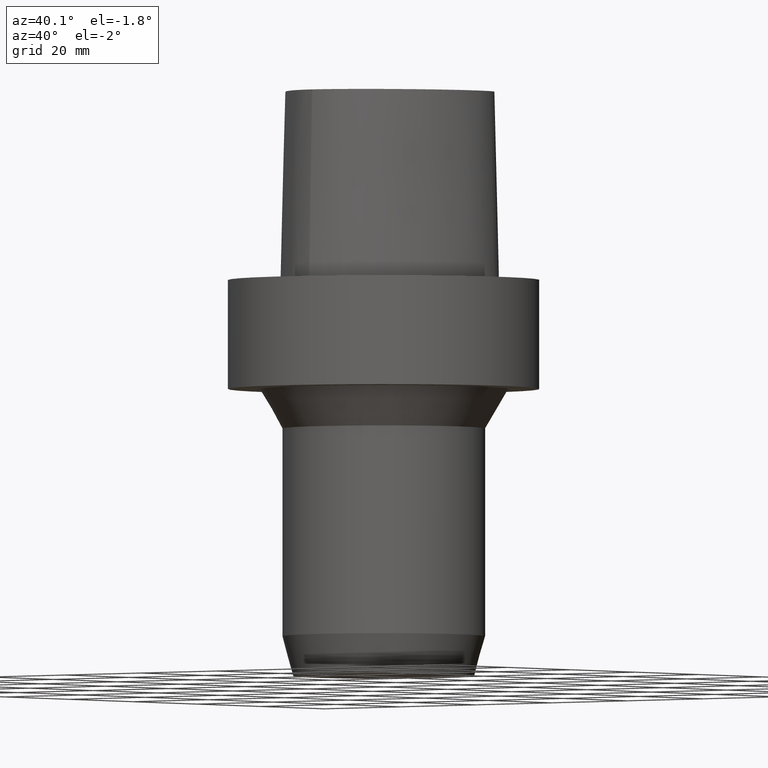
[diagram: clean part render]
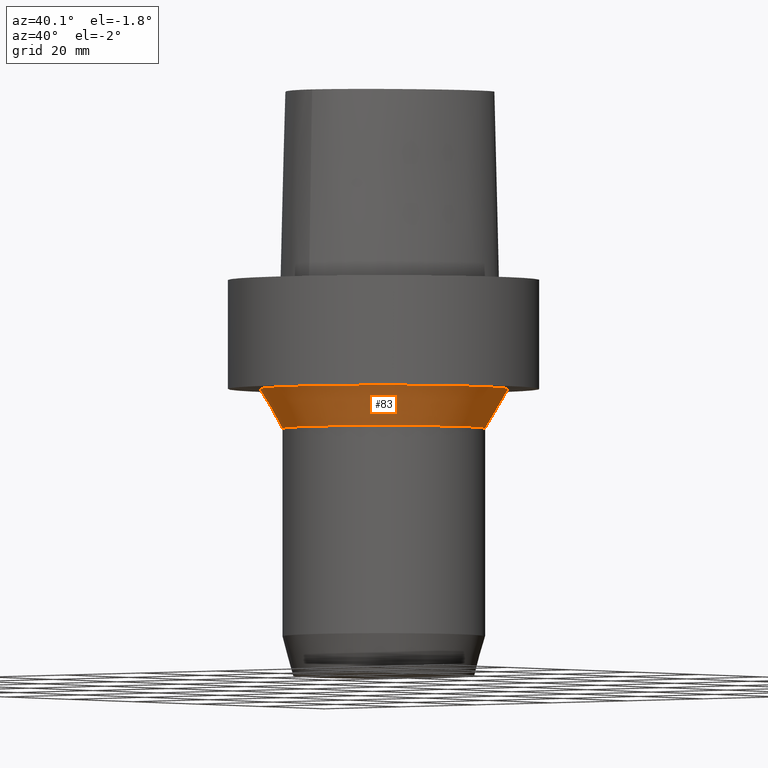
[diagram: same view with one face highlighted and labeled with its STEP entity id]
A machine part, auxiliary view. The second image highlights one B-rep face of the part: STEP entity #83.
In plain terms, the highlighted conical surface has half-angle 30 deg.
Its self-contained STEP definition (entity closure, byte-faithful):
#83=ADVANCED_FACE('',(#106,#107),#108,.T.);
#106=FACE_BOUND('',#272,.T.);
#107=FACE_BOUND('',#273,.T.);
#108=CONICAL_SURFACE('',#274,22.80940108,0.523598775994365);
#272=EDGE_LOOP('',(#321));
#273=EDGE_LOOP('',(#322));
#274=AXIS2_PLACEMENT_3D('',#323,#324,#325);
#321=ORIENTED_EDGE('',*,*,#348,.F.);
#322=ORIENTED_EDGE('',*,*,#347,.T.);
#323=CARTESIAN_POINT('',(1.59204083901131E-015,3.18408167802263E-015,-26.0000000019557));
#324=DIRECTION('',(-6.12323399573677E-017,-1.22464679914735E-016,1.0));
#325=DIRECTION('',(-1.23259516440783E-032,1.0,1.22464679914735E-016));
#347=EDGE_CURVE('',#369,#369,#370,.T.);
#348=EDGE_CURVE('',#371,#371,#372,.T.);
#369=VERTEX_POINT('',#460);
#370=CIRCLE('',#461,20.5);
#371=VERTEX_POINT('',#462);
#372=CIRCLE('',#463,25.11880216);
#460=CARTESIAN_POINT('',(1.83697019896054E-015,20.5,-30.0000000039115));
#461=AXIS2_PLACEMENT_3D('',#481,#482,#483);
#462=CARTESIAN_POINT('',(1.34711147906209E-015,25.11880216,-22.0));
#463=AXIS2_PLACEMENT_3D('',#484,#485,#486);
#481=CARTESIAN_POINT('',(1.83697019896054E-015,3.67394039792107E-015,-30.0000000039115));
#482=DIRECTION('',(-6.12323399573677E-017,-1.22464679914735E-016,1.0));
#483=DIRECTION('',(-1.23259516440783E-032,1.0,1.22464679914735E-016));
#484=CARTESIAN_POINT('',(1.34711147906209E-015,2.69422295812418E-015,-22.0));
#485=DIRECTION('',(-6.12323399573677E-017,-1.22464679914735E-016,1.0));
#486=DIRECTION('',(-1.23259516440783E-032,1.0,1.22464679914735E-016));